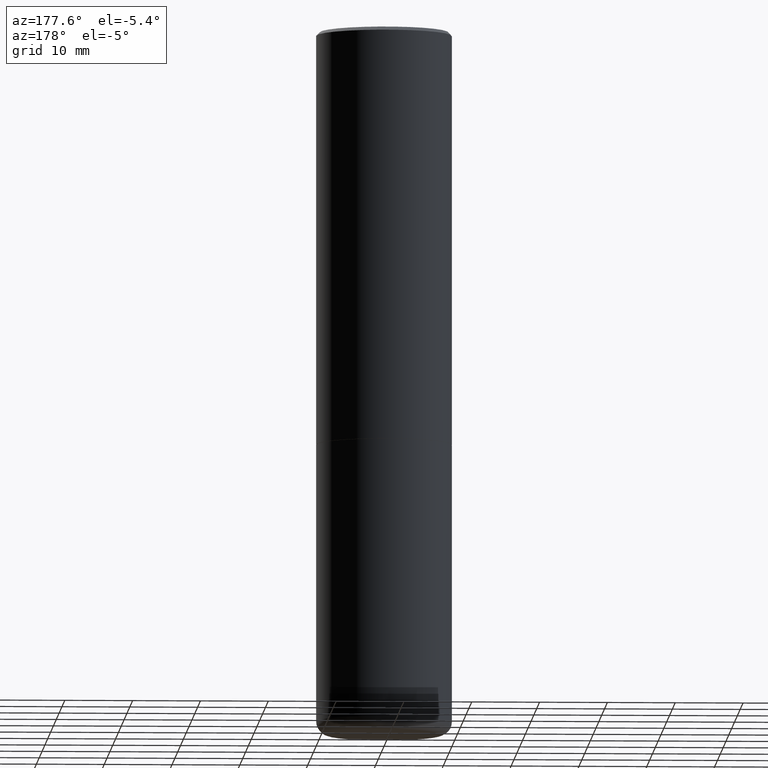
[diagram: clean part render]
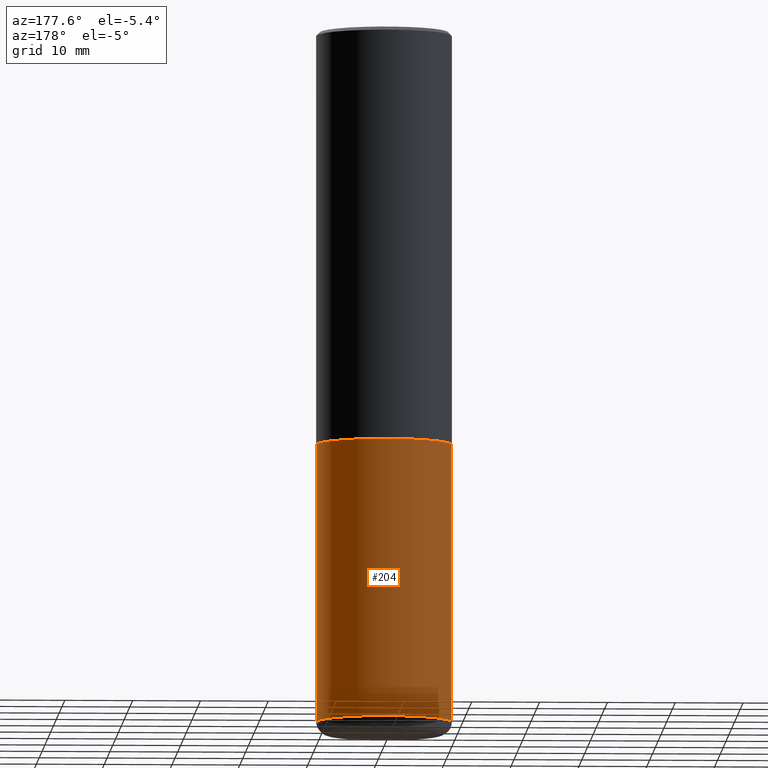
[diagram: same view with one face highlighted and labeled with its STEP entity id]
A machine part, auxiliary view. The second image highlights one B-rep face of the part: STEP entity #204.
In plain terms, the highlighted cylindrical surface (partial cylindrical patch) has radius 10 mm, axis along (-0, 0, 1).
Its self-contained STEP definition (entity closure, byte-faithful):
#11 = FACE_OUTER_BOUND ( 'NONE', #56, .T. ) ;
#21 = VERTEX_POINT ( 'NONE', #66 ) ;
#25 = AXIS2_PLACEMENT_3D ( 'NONE', #136, #267, #108 ) ;
#33 = CARTESIAN_POINT ( 'NONE',  ( 0.3937000000000000499, -2.749192406205083217E-15, 1.919750796630860172E-29 ) ) ;
#50 = EDGE_CURVE ( 'NONE', #183, #21, #270, .T. ) ;
#55 = LINE ( 'NONE', #139, #216 ) ;
#56 = EDGE_LOOP ( 'NONE', ( #247, #114, #186, #91 ) ) ;
#64 = VERTEX_POINT ( 'NONE', #243 ) ;
#65 = DIRECTION ( 'NONE',  ( 1.000000000000000000, -6.982962677686267499E-15, 0.000000000000000000 ) ) ;
#66 = CARTESIAN_POINT ( 'NONE',  ( -0.3937000000000000499, -8.405709421258487133E-15, -2.401600000000000179 ) ) ;
#70 = VERTEX_POINT ( 'NONE', #232 ) ;
#71 = CARTESIAN_POINT ( 'NONE',  ( 0.3937000000000000499, -1.113433398957078206E-14, -2.401600000000000179 ) ) ;
#75 = AXIS2_PLACEMENT_3D ( 'NONE', #295, #134, #272 ) ;
#91 = ORIENTED_EDGE ( 'NONE', *, *, #137, .F. ) ;
#98 = AXIS2_PLACEMENT_3D ( 'NONE', #231, #351, #65 ) ;
#108 = DIRECTION ( 'NONE',  ( 1.000000000000000000, -6.982962677686265133E-15, 0.000000000000000000 ) ) ;
#114 = ORIENTED_EDGE ( 'NONE', *, *, #249, .T. ) ;
#123 = EDGE_CURVE ( 'NONE', #64, #70, #158, .T. ) ;
#134 = DIRECTION ( 'NONE',  ( -2.445468806185136597E-29, 3.491481338843145583E-15, 1.000000000000000000 ) ) ;
#136 = CARTESIAN_POINT ( 'NONE',  ( 5.873037884934224349E-29, -8.385141583365698841E-15, -2.401600000000000179 ) ) ;
#137 = EDGE_CURVE ( 'NONE', #64, #183, #257, .T. ) ;
#139 = CARTESIAN_POINT ( 'NONE',  ( -0.3937000000000000499, 2.797406750687514786E-15, -1.936584745033356735E-29 ) ) ;
#155 = DIRECTION ( 'NONE',  ( -2.445468806185136877E-29, 3.491481338843145188E-15, 1.000000000000000000 ) ) ;
#158 = CIRCLE ( 'NONE', #98, 0.3937000000000000499 ) ;
#183 = VERTEX_POINT ( 'NONE', #71 ) ;
#186 = ORIENTED_EDGE ( 'NONE', *, *, #50, .F. ) ;
#204 = ADVANCED_FACE ( 'NONE', ( #11 ), #393, .T. ) ;
#216 = VECTOR ( 'NONE', #309, 39.37007874015748143 ) ;
#231 = CARTESIAN_POINT ( 'NONE',  ( 9.820513631878272860E-29, -1.402109076052630500E-14, -4.015800000000000480 ) ) ;
#232 = CARTESIAN_POINT ( 'NONE',  ( -0.3936999999999998279, -1.122368400983879100E-14, -4.015800000000000480 ) ) ;
#243 = CARTESIAN_POINT ( 'NONE',  ( 0.3936999999999998279, -1.677028316673138822E-14, -4.015800000000000480 ) ) ;
#247 = ORIENTED_EDGE ( 'NONE', *, *, #123, .T. ) ;
#249 = EDGE_CURVE ( 'NONE', #70, #21, #55, .T. ) ;
#257 = LINE ( 'NONE', #33, #341 ) ;
#267 = DIRECTION ( 'NONE',  ( -2.445468806185136597E-29, 3.491481338843145583E-15, 1.000000000000000000 ) ) ;
#270 = CIRCLE ( 'NONE', #25, 0.3937000000000000499 ) ;
#272 = DIRECTION ( 'NONE',  ( 1.000000000000000000, -6.982962677686265922E-15, 4.876176775795935793E-29 ) ) ;
#295 = CARTESIAN_POINT ( 'NONE',  ( 0.000000000000000000, 0.000000000000000000, 0.000000000000000000 ) ) ;
#309 = DIRECTION ( 'NONE',  ( -2.445468806185136877E-29, 3.491481338843145188E-15, 1.000000000000000000 ) ) ;
#341 = VECTOR ( 'NONE', #155, 39.37007874015748143 ) ;
#351 = DIRECTION ( 'NONE',  ( -2.445468806185136597E-29, 3.491481338843145583E-15, 1.000000000000000000 ) ) ;
#393 = CYLINDRICAL_SURFACE ( 'NONE', #75, 0.3937000000000000499 ) ;